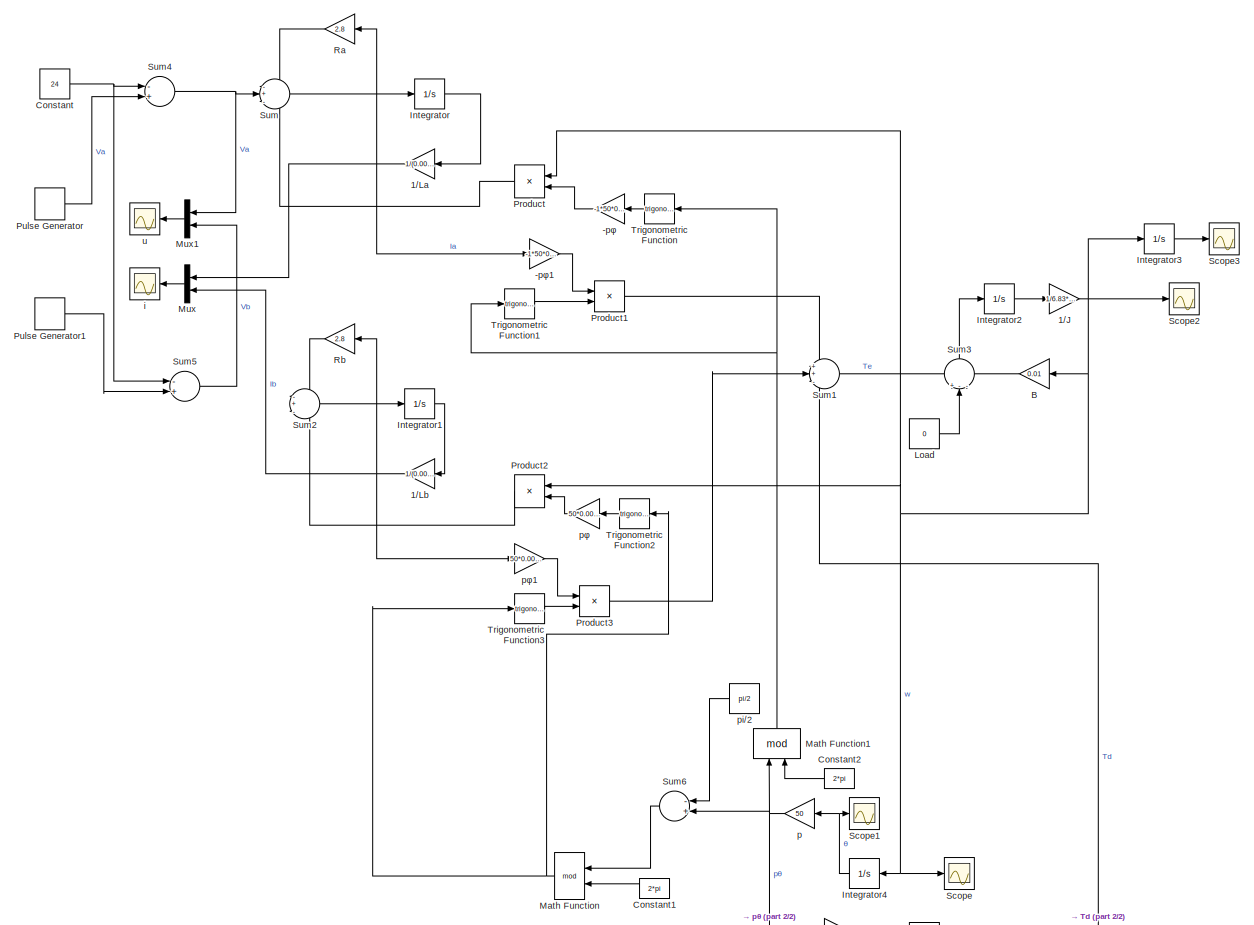
[diagram: root canvas - part 1/2, most of the canvas]
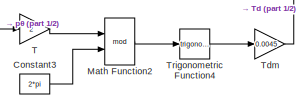
[diagram: root canvas - part 2/2, bottom right region]
MODEL slx_584f8f10b905
KIND model
CONFIG AbsTol = auto
CONFIG FixedStep = 0.002
CONFIG MaxStep = auto
CONFIG MinStep = auto
CONFIG RelTol = 1e-3
CONFIG SampleTimeConstraint = Unconstrained
CONFIG Solver = VariableStepAuto
CONFIG SolverMode = Auto
CONFIG SolverName = VariableStepAuto
CONFIG StartTime = 0.0
CONFIG StopTime = 1
BLOCK [Gain] -pφ
  Gain = -1*50*0.0015
  OutDataTypeStr = Inherit: Inherit via internal rule
  ParamDataTypeStr = Inherit: Inherit via internal rule
  SaturateOnIntegerOverflow = off
BLOCK [Gain] -pφ1
  Gain = -1*50*0.0015
  OutDataTypeStr = Inherit: Inherit via internal rule
  ParamDataTypeStr = Inherit: Inherit via internal rule
  SaturateOnIntegerOverflow = off
BLOCK [Gain] 1//J
  Gain = 1/6.83*10e6
  OutDataTypeStr = Inherit: Inherit via internal rule
  ParamDataTypeStr = Inherit: Inherit via internal rule
  SaturateOnIntegerOverflow = off
BLOCK [Gain] 1//La
  Gain = 1/(0.0065)
  OutDataTypeStr = Inherit: Inherit via internal rule
  ParamDataTypeStr = Inherit: Inherit via internal rule
  SaturateOnIntegerOverflow = off
BLOCK [Gain] 1//Lb
  Gain = 1/(0.0065)
  OutDataTypeStr = Inherit: Inherit via internal rule
  ParamDataTypeStr = Inherit: Inherit via internal rule
  SaturateOnIntegerOverflow = off
BLOCK [Gain] B
  Gain = 0.01
  OutDataTypeStr = Inherit: Inherit via internal rule
  ParamDataTypeStr = Inherit: Inherit via internal rule
  SaturateOnIntegerOverflow = off
BLOCK [Constant] Constant
  Value = 24
BLOCK [Constant] Constant1
  Value = 2*pi
BLOCK [Constant] Constant2
  Value = 2*pi
BLOCK [Constant] Constant3
  Value = 2*pi
BLOCK [Integrator] Integrator
  Ports = [1, 1]
BLOCK [Integrator] Integrator1
  Ports = [1, 1]
BLOCK [Integrator] Integrator2
  Ports = [1, 1]
BLOCK [Integrator] Integrator3
  Ports = [1, 1]
BLOCK [Integrator] Integrator4
  Ports = [1, 1]
BLOCK [Constant] Load
  Value = 0
BLOCK [Math] Math Function
  Operator = mod
  Ports = [2, 1]
BLOCK [Math] Math Function1
  Operator = mod
  Ports = [2, 1]
BLOCK [Math] Math Function2
  Operator = mod
  Ports = [2, 1]
BLOCK [Mux] Mux
  DisplayOption = bar
  Inputs = 2
  Ports = [2, 1]
BLOCK [Mux] Mux1
  DisplayOption = bar
  Inputs = 2
  Ports = [2, 1]
BLOCK [Product] Product
  InputSameDT = off
  OutDataTypeStr = Inherit: Inherit via internal rule
  Ports = [2, 1]
  RndMeth = Floor
  SaturateOnIntegerOverflow = off
BLOCK [Product] Product1
  InputSameDT = off
  OutDataTypeStr = Inherit: Inherit via internal rule
  Ports = [2, 1]
  RndMeth = Floor
  SaturateOnIntegerOverflow = off
BLOCK [Product] Product2
  InputSameDT = off
  OutDataTypeStr = Inherit: Inherit via internal rule
  Ports = [2, 1]
  RndMeth = Floor
  SaturateOnIntegerOverflow = off
BLOCK [Product] Product3
  InputSameDT = off
  OutDataTypeStr = Inherit: Inherit via internal rule
  Ports = [2, 1]
  RndMeth = Floor
  SaturateOnIntegerOverflow = off
BLOCK [DiscretePulseGenerator] Pulse Generator
  Amplitude = 48
  Period = 0.2
  Ports = [0, 1]
  PulseType = Time based
  PulseWidth = 20
  SampleTime = 0.2
BLOCK [DiscretePulseGenerator] Pulse Generator1
  Amplitude = 48
  Period = 0.2
  PhaseDelay = 0.1
  Ports = [0, 1]
  PulseType = Time based
  PulseWidth = 10
  SampleTime = 0.2
BLOCK [Gain] Ra
  Gain = 2.8
  OutDataTypeStr = Inherit: Inherit via internal rule
  ParamDataTypeStr = Inherit: Inherit via internal rule
  SaturateOnIntegerOverflow = off
BLOCK [Gain] Rb
  Gain = 2.8
  OutDataTypeStr = Inherit: Inherit via internal rule
  ParamDataTypeStr = Inherit: Inherit via internal rule
  SaturateOnIntegerOverflow = off
BLOCK [Scope] Scope
  Ports = [1]
  ScopeSpecificationString = Simulink.scopes.TimeScopeBlockCfg('CurrentConfiguration', extmgr.ConfigurationSet(extmgr.Configuration('Core','General UI',true),extmgr.Configuration('Core','Source UI',true),extmgr.Configuration('Sources','WiredSimulink',true),extmgr.Configuration('Visuals','Time Domain',true,'SerializedDisplays',{struct('MinYLimReal','-11976208900944316000000000000000000000000000000000000000000000000000000000000...<+2553ch>
BLOCK [Scope] Scope1
  Ports = [1]
  ScopeSpecificationString = Simulink.scopes.TimeScopeBlockCfg('CurrentConfiguration', extmgr.ConfigurationSet(extmgr.Configuration('Core','General UI',true),extmgr.Configuration('Core','Source UI',true),extmgr.Configuration('Sources','WiredSimulink',true,'DataLoggingVariableName','ScopeData1'),extmgr.Configuration('Visuals','Time Domain',true,'SerializedDisplays',{struct('MinYLimReal','-37786308387585121000000000000000000000...<+3810ch>
BLOCK [Scope] Scope2
  Ports = [1]
  ScopeSpecificationString = Simulink.scopes.TimeScopeBlockCfg('CurrentConfiguration', extmgr.ConfigurationSet(extmgr.Configuration('Core','General UI',true),extmgr.Configuration('Core','Source UI',true),extmgr.Configuration('Sources','WiredSimulink',true,'DataLoggingVariableName','ScopeData1'),extmgr.Configuration('Visuals','Time Domain',true,'SerializedDisplays',{struct('MinYLimReal','-1.00000','MaxYLimReal','1.00000','YLab...<+1387ch>
BLOCK [Scope] Scope3
  Ports = [1]
  ScopeSpecificationString = Simulink.scopes.TimeScopeBlockCfg('CurrentConfiguration', extmgr.ConfigurationSet(extmgr.Configuration('Core','General UI',true),extmgr.Configuration('Core','Source UI',true),extmgr.Configuration('Sources','WiredSimulink',true,'DataLoggingVariableName','ScopeData2'),extmgr.Configuration('Visuals','Time Domain',true,'SerializedDisplays',{struct('MinYLimReal','-1.00000','MaxYLimReal','1.00000','YLab...<+1422ch>
BLOCK [Sum] Sum
  IconShape = round
  InputSameDT = off
  Inputs = -+-
  OutDataTypeStr = Inherit: Inherit via internal rule
  Ports = [3, 1]
  SaturateOnIntegerOverflow = off
BLOCK [Sum] Sum1
  IconShape = round
  InputSameDT = off
  Inputs = ++-
  OutDataTypeStr = Inherit: Inherit via internal rule
  Ports = [3, 1]
  SaturateOnIntegerOverflow = off
BLOCK [Sum] Sum2
  IconShape = round
  InputSameDT = off
  Inputs = -+-
  OutDataTypeStr = Inherit: Inherit via internal rule
  Ports = [3, 1]
  SaturateOnIntegerOverflow = off
BLOCK [Sum] Sum3
  IconShape = round
  InputSameDT = off
  Inputs = +--
  OutDataTypeStr = Inherit: Inherit via internal rule
  Ports = [3, 1]
  SaturateOnIntegerOverflow = off
BLOCK [Sum] Sum4
  InputSameDT = off
  Inputs = -+
  OutDataTypeStr = Inherit: Inherit via internal rule
  Ports = [2, 1]
  SaturateOnIntegerOverflow = off
BLOCK [Sum] Sum5
  InputSameDT = off
  Inputs = -+
  OutDataTypeStr = Inherit: Inherit via internal rule
  Ports = [2, 1]
  SaturateOnIntegerOverflow = off
BLOCK [Sum] Sum6
  InputSameDT = off
  Inputs = -+
  OutDataTypeStr = Inherit: Inherit via internal rule
  Ports = [2, 1]
  SaturateOnIntegerOverflow = off
BLOCK [Gain] T
  Gain = 2
  OutDataTypeStr = Inherit: Inherit via internal rule
  ParamDataTypeStr = Inherit: Inherit via internal rule
  SaturateOnIntegerOverflow = off
BLOCK [Gain] Tdm
  Gain = 0.0045
  OutDataTypeStr = Inherit: Inherit via internal rule
  ParamDataTypeStr = Inherit: Inherit via internal rule
  SaturateOnIntegerOverflow = off
BLOCK [Trigonometry] Trigonometric Function
  Ports = [1, 1]
BLOCK [Trigonometry] Trigonometric Function1
  Ports = [1, 1]
BLOCK [Trigonometry] Trigonometric Function2
  Ports = [1, 1]
BLOCK [Trigonometry] Trigonometric Function3
  OutputSignalType = real
  Ports = [1, 1]
BLOCK [Trigonometry] Trigonometric Function4
  Ports = [1, 1]
BLOCK [Scope] i
  Ports = [1]
  ScopeSpecificationString = Simulink.scopes.TimeScopeBlockCfg('CurrentConfiguration', extmgr.ConfigurationSet(extmgr.Configuration('Core','General UI',true),extmgr.Configuration('Core','Source UI',true),extmgr.Configuration('Sources','WiredSimulink',true,'DataLoggingVariableName','ScopeData4'),extmgr.Configuration('Visuals','Time Domain',true,'SerializedDisplays',{struct('MinYLimReal','-2560054906307955.00000','MaxYLimReal',...<+1503ch>
BLOCK [Gain] p
  Gain = 50
  OutDataTypeStr = Inherit: Inherit via internal rule
  ParamDataTypeStr = Inherit: Inherit via internal rule
  SaturateOnIntegerOverflow = off
BLOCK [Constant] pi//2
  Value = pi/2
BLOCK [Gain] pφ
  Gain = 50*0.0015
  OutDataTypeStr = Inherit: Inherit via internal rule
  ParamDataTypeStr = Inherit: Inherit via internal rule
  SaturateOnIntegerOverflow = off
BLOCK [Gain] pφ1
  Gain = 50*0.0015
  OutDataTypeStr = Inherit: Inherit via internal rule
  ParamDataTypeStr = Inherit: Inherit via internal rule
  SaturateOnIntegerOverflow = off
BLOCK [Scope] u
  Ports = [1]
  ScopeSpecificationString = Simulink.scopes.TimeScopeBlockCfg('CurrentConfiguration', extmgr.ConfigurationSet(extmgr.Configuration('Core','General UI',true),extmgr.Configuration('Core','Source UI',true),extmgr.Configuration('Sources','WiredSimulink',true,'DataLoggingVariableName','ScopeData5'),extmgr.Configuration('Visuals','Time Domain',true,'SerializedDisplays',{struct('MinYLimReal','-30.00000','MaxYLimReal','30.00000','YL...<+1399ch>
LINE -pφ1:1 -> Product1:1
LINE -pφ:1 -> Product:2
NET 1//J:1 -> B:1, Integrator3:1, Integrator4:1, Product2:1, Product:1, Scope2:1, Scope:1
NET 1//La:1 -> -pφ1:1, Mux:1, Ra:1
NET 1//Lb:1 -> Mux:2, Rb:1, pφ1:1
LINE B:1 -> Sum3:3
LINE Constant1:1 -> Math Function:2
LINE Constant2:1 -> Math Function1:2
LINE Constant3:1 -> Math Function2:2
NET Constant:1 -> Sum4:1, Sum5:1
LINE Integrator1:1 -> 1//Lb:1
LINE Integrator2:1 -> 1//J:1
LINE Integrator3:1 -> Scope3:1
NET Integrator4:1 -> Scope1:1, p:1
LINE Integrator:1 -> 1//La:1
LINE Load:1 -> Sum3:2
NET Math Function1:1 -> Trigonometric Function1:1, Trigonometric Function:1
LINE Math Function2:1 -> Trigonometric Function4:1
NET Math Function:1 -> Trigonometric Function2:1, Trigonometric Function3:1
LINE Mux1:1 -> u:1
LINE Mux:1 -> i:1
LINE Product1:1 -> Sum1:1
LINE Product2:1 -> Sum2:3
LINE Product3:1 -> Sum1:2
LINE Product:1 -> Sum:3
LINE Pulse Generator1:1 -> Sum5:2
LINE Pulse Generator:1 -> Sum4:2
LINE Ra:1 -> Sum:1
LINE Rb:1 -> Sum2:1
LINE Sum1:1 -> Sum3:1
LINE Sum2:1 -> Integrator1:1
LINE Sum3:1 -> Integrator2:1
NET Sum4:1 -> Mux1:1, Sum:2
LINE Sum5:1 -> Mux1:2
LINE Sum6:1 -> Math Function:1
LINE Sum:1 -> Integrator:1
LINE T:1 -> Math Function2:1
LINE Tdm:1 -> Sum1:3
LINE Trigonometric Function1:1 -> Product1:2
LINE Trigonometric Function2:1 -> pφ:1
LINE Trigonometric Function3:1 -> Product3:2
LINE Trigonometric Function4:1 -> Tdm:1
LINE Trigonometric Function:1 -> -pφ:1
NET p:1 -> Math Function1:1, Sum6:2, T:1
LINE pi//2:1 -> Sum6:1
LINE pφ1:1 -> Product3:1
LINE pφ:1 -> Product2:2
note: NET lines group one-source signal fan-out (src -> all destinations, sorted); 1:1 wires keep LINE
